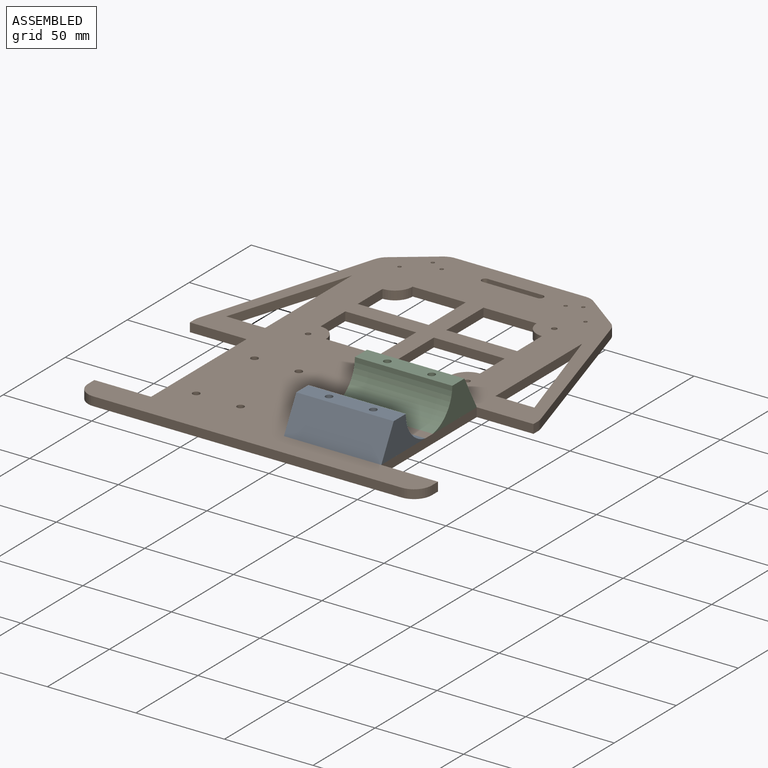
[diagram: assembled view]
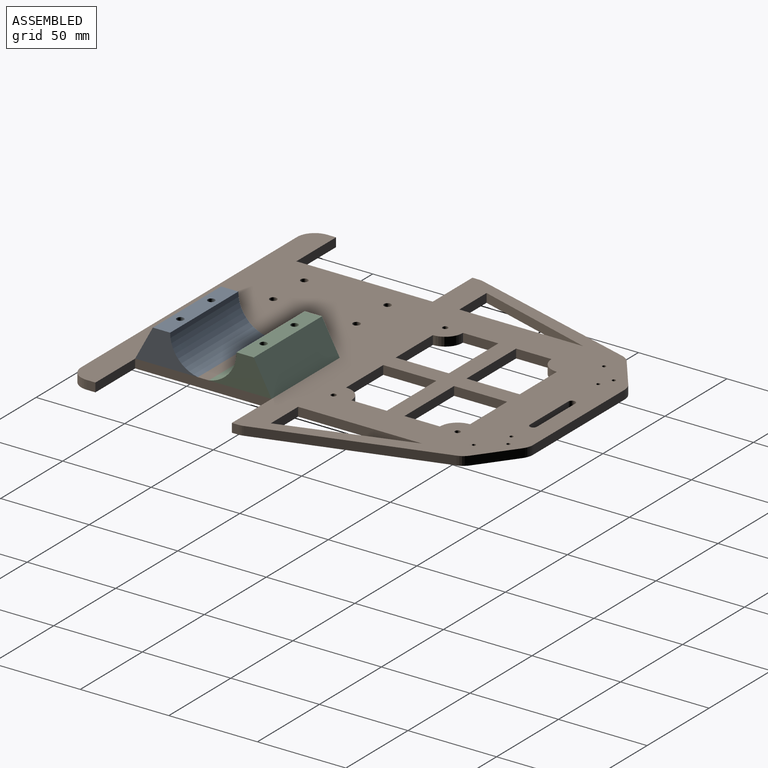
[diagram: assembled view, second angle]
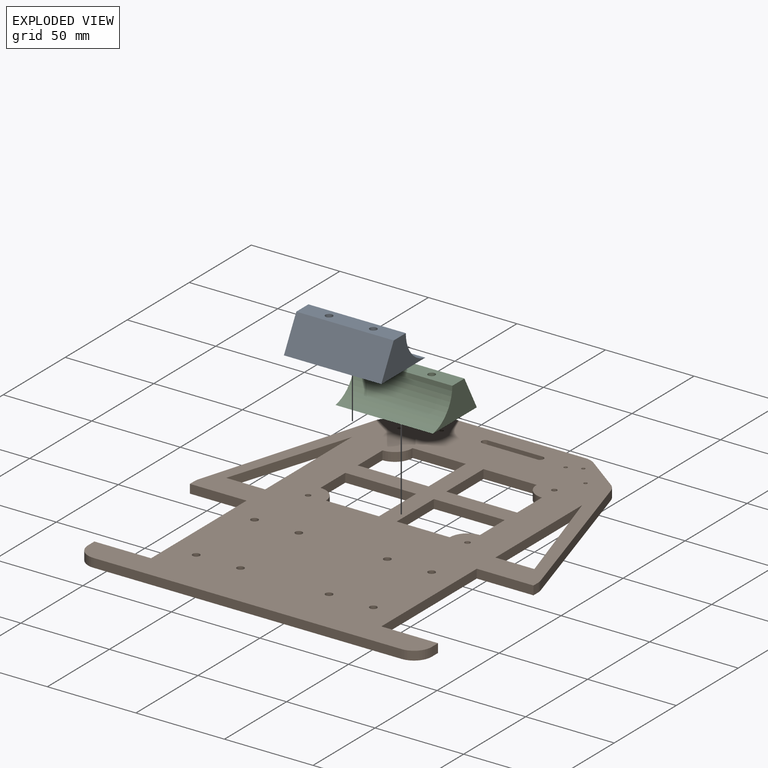
[diagram: exploded view]
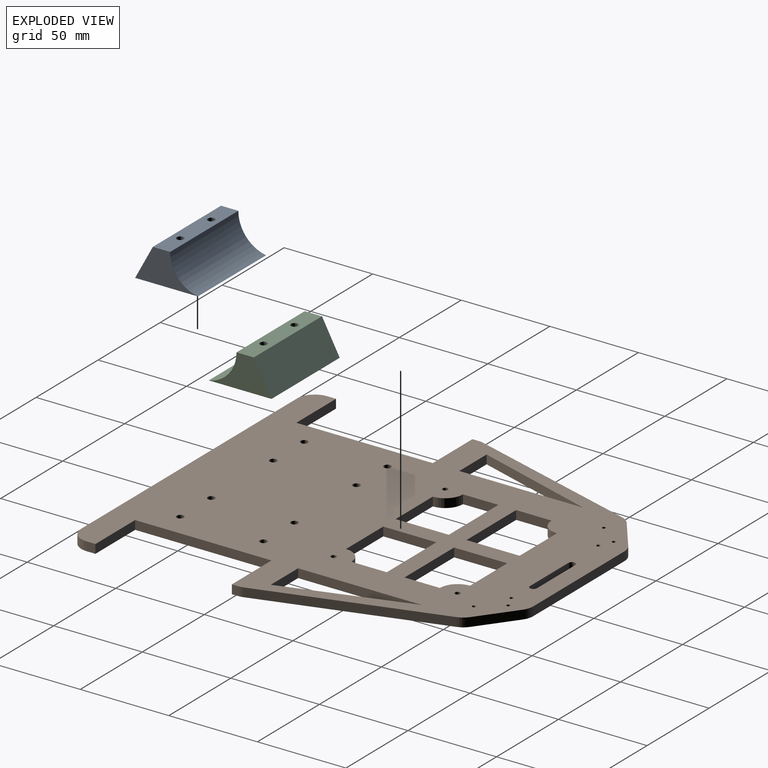
[diagram: exploded view, second angle]
ASSEMBLY  parts=3 mates=4
PART A: 8 faces, bbox 35.4x18.5x55 mm
  f0: plane 55x35.45mm, normal (0,-1,0), area 1924.5mm2, adj f2,f3,f4,f5,f6,f7
  f1: plane 55x9.75mm, normal (0,1,0), area 511.1mm2, adj f2,f3,f4,f5,f6,f7
  f2: cylinder r=18.75mm len=55mm, axis (0,0,-1), area 1451.3mm2, adj f0,f1,f4,f5
  f3: plane 55x18.5mm, normal (-0.88,0.48,0), area 1156.6mm2, adj f0,f1,f4,f5
  f4: plane 35.45x18.5mm, normal (0,0,1), area 344.1mm2, adj f0,f1,f2,f3
  f5: plane 35.45x18.5mm, normal (0,0,-1), area 344.1mm2, adj f0,f1,f2,f3
  f6: cylinder r=2mm len=18.5mm, axis (0,1,0), area 232.5mm2, adj f0,f1
  f7: cylinder r=2mm len=18.5mm, axis (0,1,0), area 232.5mm2, adj f0,f1
PART B: 129 faces, bbox 194x220x5 mm
  f0: plane 220x194mm, normal (0,0,-1), area 26228.3mm2, adj f10,f11,f12,f13,f14,f15,f16,f17
  f1: cylinder r=2mm len=4mm, axis (0,0,1), area 25.1mm2, adj f9,f122
  f2: cylinder r=2mm len=4mm, axis (0,0,1), area 25.1mm2, adj f9,f115
  f3: cylinder r=2mm len=4mm, axis (0,0,1), area 25.1mm2, adj f9,f108
  f4: cylinder r=2mm len=4mm, axis (0,0,1), area 25.1mm2, adj f9,f107
  f5: cylinder r=2mm len=4mm, axis (0,0,1), area 25.1mm2, adj f9,f94
  f6: cylinder r=2mm len=4mm, axis (0,0,1), area 25.1mm2, adj f9,f93
  f7: cylinder r=2mm len=4mm, axis (0,0,1), area 25.1mm2, adj f9,f86
  f8: cylinder r=2mm len=4mm, axis (0,0,1), area 25.1mm2, adj f9,f79
  f9: plane 220x194mm, normal (0,0,1), area 26467.3mm2, adj f1,f2,f3,f4,f5,f6,f7,f8
  f10: plane 70x5mm, normal (1,0,0), area 350mm2, adj f0,f9,f11,f59
  f11: plane 70x22mm, normal (-0.95,-0.3,0), area 366.9mm2, adj f0,f9,f10,f59
  f12: plane 70x22mm, normal (0.95,-0.3,0), area 366.9mm2, adj f0,f9,f13,f46
  f13: plane 70x5mm, normal (-1,0,0), area 350mm2, adj f0,f9,f12,f46
  f14: cylinder r=2mm len=5mm, axis (0,0,-1), area 31.4mm2, adj f0,f9,f15,f53
  f15: plane 31x5mm, normal (0,-1,0), area 155mm2, adj f0,f9,f14,f16
  f16: cylinder r=2mm len=5mm, axis (0,0,-1), area 31.4mm2, adj f0,f9,f15,f53
  f17: plane 40x5mm, normal (0,1,0), area 200mm2, adj f0,f9,f18,f54
  f18: plane 20x5mm, normal (1,0,0), area 100mm2, adj f0,f9,f17,f19
  f19: cylinder r=10mm len=10mm, axis (0,0,-1), area 78.5mm2, adj f0,f9,f18,f20
  f20: plane 30x5mm, normal (0,-1,0), area 150mm2, adj f0,f9,f19,f54
  f21: plane 174x5mm, normal (0,-1,0), area 870mm2, adj f0,f9,f71,f72
  f22: plane 5x5mm, normal (1,0,0), area 25mm2, adj f0,f9,f23,f72
  f23: plane 32x5mm, normal (0,1,0), area 160mm2, adj f0,f9,f22,f24
  f24: plane 77x5mm, normal (1,0,0), area 385mm2, adj f0,f9,f23,f25
  f25: plane 32x5mm, normal (0,-1,0), area 160mm2, adj f0,f9,f24,f26
  f26: plane 5x3.53mm, normal (1,0,0), area 17.6mm2, adj f0,f9,f25,f67
  f27: plane 99.27x29.86mm, normal (0.96,0.29,0), area 518.3mm2, adj f0,f9,f62,f67
  f28: plane 73.38x5mm, normal (0,1,0), area 366.9mm2, adj f0,f9,f63,f64
  f29: plane 99.27x29.86mm, normal (-0.96,0.29,0), area 518.3mm2, adj f0,f9,f65,f66
  f30: plane 5x3.53mm, normal (-1,0,0), area 17.6mm2, adj f0,f9,f31,f66
  f31: plane 32x5mm, normal (0,-1,0), area 160mm2, adj f0,f9,f30,f32
  f32: plane 77x5mm, normal (-1,0,0), area 385mm2, adj f0,f9,f31,f33
  f33: plane 32x5mm, normal (0,1,0), area 160mm2, adj f0,f9,f32,f55
  f34: plane 20x5mm, normal (1,0,0), area 100mm2, adj f0,f9,f35,f56
  f35: plane 40x5mm, normal (0,-1,0), area 200mm2, adj f0,f9,f34,f36
  f36: plane 30x5mm, normal (-1,0,0), area 150mm2, adj f0,f9,f35,f37
  f37: plane 30x5mm, normal (0,1,0), area 150mm2, adj f0,f9,f36,f56
  f38: plane 30x5mm, normal (0,1,0), area 150mm2, adj f0,f9,f39,f57
  f39: plane 30x5mm, normal (1,0,0), area 150mm2, adj f0,f9,f38,f40
  f40: plane 40x5mm, normal (0,-1,0), area 200mm2, adj f0,f9,f39,f41
  f41: plane 20x5mm, normal (-1,0,0), area 100mm2, adj f0,f9,f40,f57
  f42: plane 20x5mm, normal (-1,0,0), area 100mm2, adj f0,f9,f43,f58
  f43: plane 40x5mm, normal (0,1,0), area 200mm2, adj f0,f9,f42,f44
  f44: plane 30x5mm, normal (1,0,0), area 150mm2, adj f0,f9,f43,f45
  f45: plane 30x5mm, normal (0,-1,0), area 150mm2, adj f0,f9,f44,f58
  f46: plane 22x5mm, normal (0,1,0), area 110mm2, adj f0,f9,f12,f13
  f47: cylinder r=1mm len=5mm, axis (0,0,-1), area 31.4mm2, adj f0,f9
  f48: cylinder r=1mm len=5mm, axis (0,0,-1), area 31.4mm2, adj f0,f9
  f49: cylinder r=1mm len=5mm, axis (0,0,-1), area 31.4mm2, adj f0,f9
  f50: cylinder r=1mm len=5mm, axis (0,0,-1), area 31.4mm2, adj f0,f9
  f51: cylinder r=1mm len=5mm, axis (0,0,-1), area 31.4mm2, adj f0,f9
  f52: cylinder r=1mm len=5mm, axis (0,0,-1), area 31.4mm2, adj f0,f9
  f53: plane 31x5mm, normal (0,1,0), area 155mm2, adj f0,f9,f14,f16
  f54: plane 30x5mm, normal (-1,0,0), area 150mm2, adj f0,f9,f17,f20
  f55: plane 5x5mm, normal (-1,0,0), area 25mm2, adj f0,f9,f33,f71
  f56: cylinder r=10mm len=10mm, axis (0,0,-1), area 78.5mm2, adj f0,f9,f34,f37
  f57: cylinder r=10mm len=10mm, axis (0,0,-1), area 78.5mm2, adj f0,f9,f38,f41
  f58: cylinder r=10mm len=10mm, axis (0,0,-1), area 78.5mm2, adj f0,f9,f42,f45
  f59: plane 22x5mm, normal (0,1,0), area 110mm2, adj f0,f9,f10,f11
  f60: plane 20.45x15.2mm, normal (-0.6,0.8,0), area 127.4mm2, adj f0,f9,f64,f65
  f61: plane 20.45x15.2mm, normal (0.6,0.8,0), area 127.4mm2, adj f0,f9,f62,f63
  f62: cylinder r=10mm len=5.14mm, axis (0,0,1), area 32mm2, adj f0,f9,f27,f61
  f63: cylinder r=10mm len=5.97mm, axis (0,0,-1), area 32mm2, adj f0,f9,f28,f61
  f64: cylinder r=10mm len=5.97mm, axis (0,0,-1), area 32mm2, adj f0,f9,f28,f60
  f65: cylinder r=10mm len=5.14mm, axis (0,0,-1), area 32mm2, adj f0,f9,f29,f60
  f66: cylinder r=10mm len=5mm, axis (0,0,-1), area 14.6mm2, adj f0,f9,f29,f30
  f67: cylinder r=10mm len=5mm, axis (0,0,-1), area 14.6mm2, adj f0,f9,f26,f27
  f68: cylinder r=1.5mm len=5mm, axis (0,0,1), area 47.1mm2, adj f0,f9
  f69: cylinder r=1.5mm len=5mm, axis (0,0,1), area 47.1mm2, adj f0,f9
  f70: cylinder r=1.5mm len=5mm, axis (0,0,1), area 47.1mm2, adj f0,f9
  f71: cylinder r=10mm len=10mm, axis (0,0,-1), area 78.5mm2, adj f0,f9,f21,f55
  f72: cylinder r=10mm len=10mm, axis (0,0,1), area 78.5mm2, adj f0,f9,f21,f22
  f73: plane 3.5x3mm, normal (0.87,-0.5,0), area 12.1mm2, adj f0,f74,f78,f79
  f74: plane 4.04x3mm, normal (0,-1,0), area 12.1mm2, adj f0,f73,f75,f79
  f75: plane 3.5x3mm, normal (-0.87,-0.5,0), area 12.1mm2, adj f0,f74,f76,f79
  f76: plane 3.5x3mm, normal (-0.87,0.5,0), area 12.1mm2, adj f0,f75,f77,f79
  f77: plane 4.04x3mm, normal (0,1,0), area 12.1mm2, adj f0,f76,f78,f79
  f78: plane 3.5x3mm, normal (0.87,0.5,0), area 12.1mm2, adj f0,f73,f77,f79
  f79: plane 8.08x7mm, normal (0,0,-1), area 29.9mm2, adj f8,f73,f74,f75,f76,f77,f78
  f80: plane 3.5x3mm, normal (-0.87,0.5,0), area 12.1mm2, adj f0,f81,f85,f86
  f81: plane 4.04x3mm, normal (0,1,0), area 12.1mm2, adj f0,f80,f82,f86
  f82: plane 3.5x3mm, normal (0.87,0.5,0), area 12.1mm2, adj f0,f81,f83,f86
  f83: plane 3.5x3mm, normal (0.87,-0.5,0), area 12.1mm2, adj f0,f82,f84,f86
  f84: plane 4.04x3mm, normal (0,-1,0), area 12.1mm2, adj f0,f83,f85,f86
  f85: plane 3.5x3mm, normal (-0.87,-0.5,0), area 12.1mm2, adj f0,f80,f84,f86
  f86: plane 8.08x7mm, normal (0,0,-1), area 29.9mm2, adj f7,f80,f81,f82,f83,f84,f85
  f87: plane 3.5x3mm, normal (-0.87,0.5,0), area 12.1mm2, adj f0,f88,f92,f93
  f88: plane 4.04x3mm, normal (0,1,0), area 12.1mm2, adj f0,f87,f89,f93
  f89: plane 3.5x3mm, normal (0.87,0.5,0), area 12.1mm2, adj f0,f88,f90,f93
  f90: plane 3.5x3mm, normal (0.87,-0.5,0), area 12.1mm2, adj f0,f89,f91,f93
  f91: plane 4.04x3mm, normal (0,-1,0), area 12.1mm2, adj f0,f90,f92,f93
  f92: plane 3.5x3mm, normal (-0.87,-0.5,0), area 12.1mm2, adj f0,f87,f91,f93
  f93: plane 8.08x7mm, normal (0,0,-1), area 29.9mm2, adj f6,f87,f88,f89,f90,f91,f92
  f94: plane 8.08x7mm, normal (0,0,-1), area 29.9mm2, adj f5,f95,f96,f97,f98,f99,f100
  f95: plane 3.5x3mm, normal (0.87,-0.5,0), area 12.1mm2, adj f0,f94,f96,f100
  f96: plane 4.04x3mm, normal (0,-1,0), area 12.1mm2, adj f0,f94,f95,f97
  f97: plane 3.5x3mm, normal (-0.87,-0.5,0), area 12.1mm2, adj f0,f94,f96,f98
  f98: plane 3.5x3mm, normal (-0.87,0.5,0), area 12.1mm2, adj f0,f94,f97,f99
  f99: plane 4.04x3mm, normal (0,1,0), area 12.1mm2, adj f0,f94,f98,f100
  f100: plane 3.5x3mm, normal (0.87,0.5,0), area 12.1mm2, adj f0,f94,f95,f99
  f101: plane 4.04x3mm, normal (0,1,0), area 12.1mm2, adj f0,f102,f106,f107
  f102: plane 3.5x3mm, normal (0.87,0.5,0), area 12.1mm2, adj f0,f101,f103,f107
  f103: plane 3.5x3mm, normal (0.87,-0.5,0), area 12.1mm2, adj f0,f102,f104,f107
  f104: plane 4.04x3mm, normal (0,-1,0), area 12.1mm2, adj f0,f103,f105,f107
  f105: plane 3.5x3mm, normal (-0.87,-0.5,0), area 12.1mm2, adj f0,f104,f106,f107
  f106: plane 3.5x3mm, normal (-0.87,0.5,0), area 12.1mm2, adj f0,f101,f105,f107
  f107: plane 8.08x7mm, normal (0,0,-1), area 29.9mm2, adj f4,f101,f102,f103,f104,f105,f106
  f108: plane 8.08x7mm, normal (0,0,-1), area 29.9mm2, adj f3,f109,f110,f111,f112,f113,f114
  f109: plane 3.5x3mm, normal (-0.87,0.5,0), area 12.1mm2, adj f0,f108,f110,f114
  f110: plane 4.04x3mm, normal (0,1,0), area 12.1mm2, adj f0,f108,f109,f111
  f111: plane 3.5x3mm, normal (0.87,0.5,0), area 12.1mm2, adj f0,f108,f110,f112
  f112: plane 3.5x3mm, normal (0.87,-0.5,0), area 12.1mm2, adj f0,f108,f111,f113
  f113: plane 4.04x3mm, normal (0,-1,0), area 12.1mm2, adj f0,f108,f112,f114
  f114: plane 3.5x3mm, normal (-0.87,-0.5,0), area 12.1mm2, adj f0,f108,f109,f113
  f115: plane 8.08x7mm, normal (0,0,-1), area 29.9mm2, adj f2,f116,f117,f118,f119,f120,f121
  f116: plane 4.04x3mm, normal (0,1,0), area 12.1mm2, adj f0,f115,f117,f121
  f117: plane 3.5x3mm, normal (0.87,0.5,0), area 12.1mm2, adj f0,f115,f116,f118
  f118: plane 3.5x3mm, normal (0.87,-0.5,0), area 12.1mm2, adj f0,f115,f117,f119
  f119: plane 4.04x3mm, normal (0,-1,0), area 12.1mm2, adj f0,f115,f118,f120
  f120: plane 3.5x3mm, normal (-0.87,-0.5,0), area 12.1mm2, adj f0,f115,f119,f121
  f121: plane 3.5x3mm, normal (-0.87,0.5,0), area 12.1mm2, adj f0,f115,f116,f120
  f122: plane 8.08x7mm, normal (0,0,-1), area 29.9mm2, adj f1,f123,f124,f125,f126,f127,f128
  f123: plane 3.5x3mm, normal (0.87,0.5,0), area 12.1mm2, adj f0,f122,f124,f128
  f124: plane 3.5x3mm, normal (0.87,-0.5,0), area 12.1mm2, adj f0,f122,f123,f125
  f125: plane 4.04x3mm, normal (0,-1,0), area 12.1mm2, adj f0,f122,f124,f126
  f126: plane 3.5x3mm, normal (-0.87,-0.5,0), area 12.1mm2, adj f0,f122,f125,f127
  f127: plane 3.5x3mm, normal (-0.87,0.5,0), area 12.1mm2, adj f0,f122,f126,f128
  f128: plane 4.04x3mm, normal (0,1,0), area 12.1mm2, adj f0,f122,f123,f127
PART C: same geometry as A
PLACE A rot(axis=(0.58,0.58,0.58),120deg) t=(45.23,-35.38,2.68)mm
PLACE B t=(35.23,21.12,-2.32)mm fixed
PLACE C rot(axis=(0.58,-0.58,-0.58),120deg) t=(100.23,-35.38,2.68)mm
MATE cylindrical C.f7 <-> B.f2  axis (0,0,-1) through (60.23,-11.88,2.68)mm
MATE cylindrical A.f7 <-> B.f4  axis (0,0,-1) through (85.23,-58.88,2.68)mm
MATE cylindrical A.f6 <-> B.f8  axis (0,0,-1) through (60.23,-58.88,2.68)mm
MATE cylindrical C.f6 <-> B.f3  axis (0,0,-1) through (85.23,-11.88,2.68)mm
